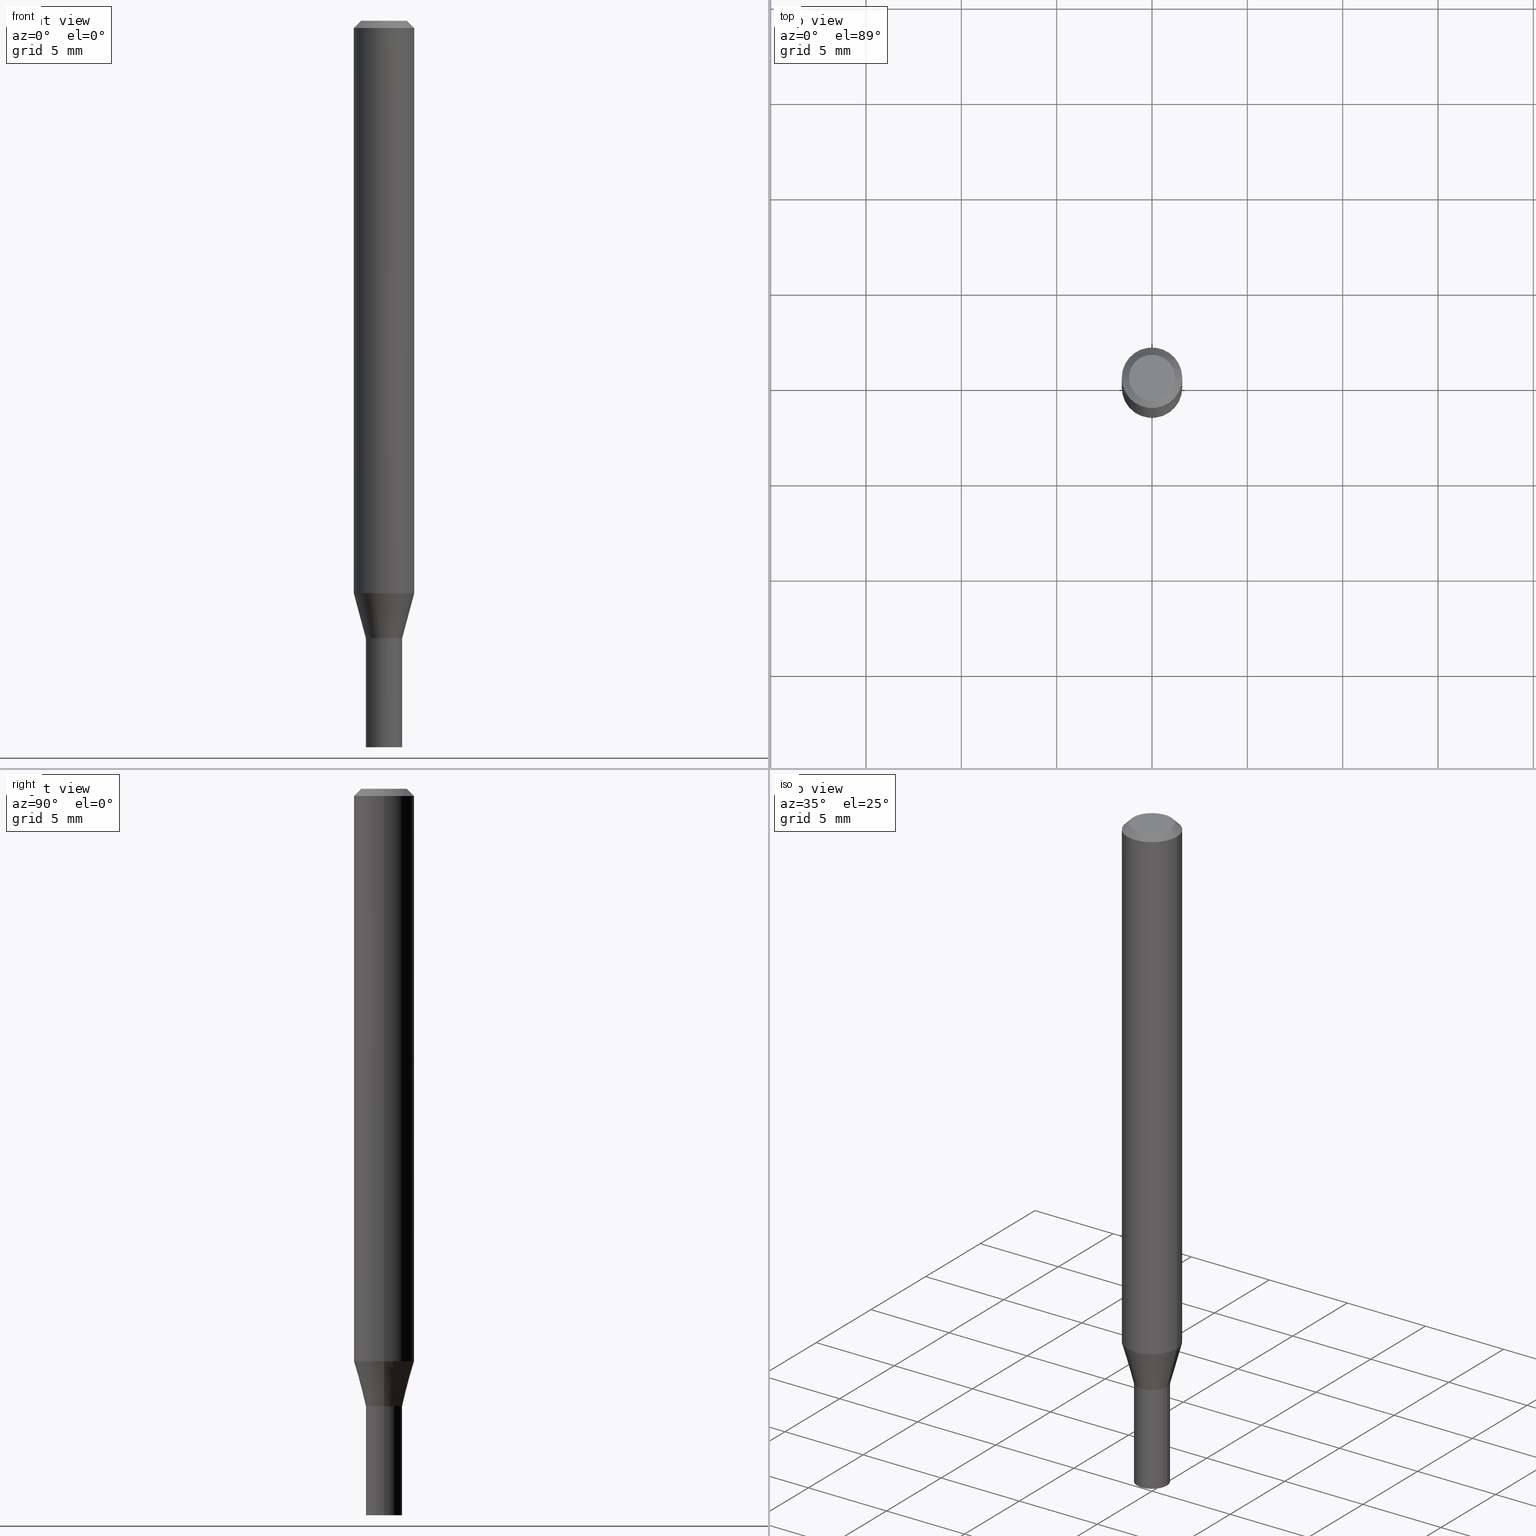
[diagram: canonical four-view strip — front | top / right | iso, engineering-drawing reading convention]
A machine part, canonical four-view strip (front | top / right | iso — engineering-drawing reading convention). The complete STEP part file that produces these views, byte-faithful:
ISO-10303-21;
HEADER;
FILE_DESCRIPTION (( 'STEP AP203' ),
    '1' );
FILE_NAME ('04007.STEP',
    '2024-03-14T16:54:51',
    ( '' ),
    ( '' ),
    'SwSTEP 2.0',
    'SolidWorks 2023',
    '' );
FILE_SCHEMA (( 'CONFIG_CONTROL_DESIGN' ));
ENDSEC;

DATA;
#1 = PERSON_AND_ORGANIZATION ( #277, #305 ) ;
#2 = EDGE_CURVE ( 'NONE', #231, #378, #82, .T. ) ;
#3 = APPROVAL_PERSON_ORGANIZATION ( #30, #48, #70 ) ;
#4 = CIRCLE ( 'NONE', #36, 0.04749999999999999362 ) ;
#5 = CARTESIAN_POINT ( 'NONE',  ( 0.03699999999999999817, -4.710008326099402011E-15, -1.274999999999999911 ) ) ;
#6 = ADVANCED_FACE ( 'NONE', ( #46 ), #216, .F. ) ;
#7 = CARTESIAN_POINT ( 'NONE',  ( 3.668203209277704895E-29, -5.237222008264718177E-15, -1.500000000000000222 ) ) ;
#8 = DIMENSIONAL_EXPONENTS ( 1.000000000000000000, 0.000000000000000000, 0.000000000000000000, 0.000000000000000000, 0.000000000000000000, 0.000000000000000000, 0.000000000000000000 ) ;
#9 = CARTESIAN_POINT ( 'NONE',  ( 0.000000000000000000, 0.000000000000000000, 0.000000000000000000 ) ) ;
#10 = DIRECTION ( 'NONE',  ( -2.445468806185136597E-29, 3.491481338843145583E-15, 1.000000000000000000 ) ) ;
#11 = ORIENTED_EDGE ( 'NONE', *, *, #240, .T. ) ;
#12 = FACE_OUTER_BOUND ( 'NONE', #339, .T. ) ;
#13 = APPROVAL_STATUS ( 'not_yet_approved' ) ;
#14 = DIRECTION ( 'NONE',  ( -2.445468806185136597E-29, 3.491481338843145583E-15, 1.000000000000000000 ) ) ;
#15 = ORIENTED_EDGE ( 'NONE', *, *, #203, .F. ) ;
#16 = CONICAL_SURFACE ( 'NONE', #111, 0.03749999999999965167, 0.2617993877991502960 ) ;
#17 = ORIENTED_EDGE ( 'NONE', *, *, #350, .T. ) ;
#18 = CC_DESIGN_APPROVAL ( #266, ( #183 ) ) ;
#19 = CARTESIAN_POINT ( 'NONE',  ( 0.000000000000000000, 0.000000000000000000, 0.000000000000000000 ) ) ;
#20 = DIRECTION ( 'NONE',  ( -2.445468806185136597E-29, 3.491481338843145583E-15, 1.000000000000000000 ) ) ;
#21 = FACE_OUTER_BOUND ( 'NONE', #328, .T. ) ;
#22 = ORIENTED_EDGE ( 'NONE', *, *, #253, .F. ) ;
#23 = VERTEX_POINT ( 'NONE', #336 ) ;
#24 = DIRECTION ( 'NONE',  ( 1.000000000000000000, -6.982962677686268288E-15, 0.000000000000000000 ) ) ;
#25 = ORIENTED_EDGE ( 'NONE', *, *, #213, .T. ) ;
#26 = EDGE_CURVE ( 'NONE', #128, #378, #86, .T. ) ;
#27 = LINE ( 'NONE', #166, #427 ) ;
#28 = DIRECTION ( 'NONE',  ( 1.000000000000000000, -6.982962677686266711E-15, 4.876176775795935793E-29 ) ) ;
#29 = ORIENTED_EDGE ( 'NONE', *, *, #262, .T. ) ;
#30 = PERSON_AND_ORGANIZATION ( #277, #305 ) ;
#31 = AXIS2_PLACEMENT_3D ( 'NONE', #125, #274, #414 ) ;
#32 = CARTESIAN_POINT ( 'NONE',  ( 0.03749999999999999861, -2.618611004132350016E-16, 1.828566290923475922E-30 ) ) ;
#33 = DIRECTION ( 'NONE',  ( -2.445468806185136597E-29, 3.491481338843145583E-15, 1.000000000000000000 ) ) ;
#34 = VERTEX_POINT ( 'NONE', #437 ) ;
#35 = APPROVAL_DATE_TIME ( #323, #48 ) ;
#36 = AXIS2_PLACEMENT_3D ( 'NONE', #74, #37, #397 ) ;
#37 = DIRECTION ( 'NONE',  ( -2.445468806185136597E-29, 3.491481338843145583E-15, 1.000000000000000000 ) ) ;
#38 = ADVANCED_FACE ( 'NONE', ( #256 ), #364, .T. ) ;
#39 =( NAMED_UNIT ( * ) PLANE_ANGLE_UNIT ( ) SI_UNIT ( $, .RADIAN. ) );
#40 = VECTOR ( 'NONE', #233, 39.37007874015748143 ) ;
#41 = DIRECTION ( 'NONE',  ( 0.7071067811865656694, -2.468850131082446387E-15, 0.7071067811865294761 ) ) ;
#42 = DIRECTION ( 'NONE',  ( 0.000000000000000000, 0.000000000000000000, 1.000000000000000000 ) ) ;
#43 = CARTESIAN_POINT ( 'NONE',  ( 8.901864651713830245E-45, -1.270950348405846147E-30, -3.640146473837256732E-16 ) ) ;
#44 = SECURITY_CLASSIFICATION ( '', '', #466 ) ;
#45 = VECTOR ( 'NONE', #310, 39.37007874015748143 ) ;
#46 = FACE_OUTER_BOUND ( 'NONE', #297, .T. ) ;
#47 = EDGE_CURVE ( 'NONE', #201, #23, #298, .T. ) ;
#48 = APPROVAL ( #13, 'UNSPECIFIED' ) ;
#49 = CARTESIAN_POINT ( 'NONE',  ( -0.03749999999999999861, 2.664535259100375598E-16, -1.844600658845589458E-30 ) ) ;
#50 = COORDINATED_UNIVERSAL_TIME_OFFSET ( 5, 0, .BEHIND. ) ;
#51 = CARTESIAN_POINT ( 'NONE',  ( -0.06250000000000000000, 3.840629472727444916E-16, -0.01499999999999999944 ) ) ;
#52 = ORIENTED_EDGE ( 'NONE', *, *, #78, .F. ) ;
#53 = PERSON_AND_ORGANIZATION_ROLE ( 'classification_officer' ) ;
#54 = DIRECTION ( 'NONE',  ( 1.000000000000000000, -6.982962677686254089E-15, 0.000000000000000000 ) ) ;
#55 = EDGE_LOOP ( 'NONE', ( #60, #97 ) ) ;
#56 = AXIS2_PLACEMENT_3D ( 'NONE', #132, #409, #54 ) ;
#57 = ORIENTED_EDGE ( 'NONE', *, *, #221, .T. ) ;
#58 = DIRECTION ( 'NONE',  ( 0.2588190451025216277, 1.565188264969619995E-15, 0.9659258262890679791 ) ) ;
#59 = CARTESIAN_POINT ( 'NONE',  ( -0.06250000000000000000, 4.440892098500626162E-16, -3.074334431409316114E-30 ) ) ;
#60 = ORIENTED_EDGE ( 'NONE', *, *, #152, .T. ) ;
#61 = CARTESIAN_POINT ( 'NONE',  ( 2.889807382060853894E-29, -4.125879063268977343E-15, -1.181698729810777282 ) ) ;
#62 = ORIENTED_EDGE ( 'NONE', *, *, #83, .F. ) ;
#63 = CARTESIAN_POINT ( 'NONE',  ( 3.117972727886048488E-29, -4.451638707025010805E-15, -1.274999999999999911 ) ) ;
#64 = VERTEX_POINT ( 'NONE', #81 ) ;
#65 = FACE_OUTER_BOUND ( 'NONE', #377, .T. ) ;
#66 = CARTESIAN_POINT ( 'NONE',  ( -0.06250000000000000000, -1.645036431825749595E-15, -0.01499999999999999944 ) ) ;
#67 = AXIS2_PLACEMENT_3D ( 'NONE', #187, #404, #338 ) ;
#68 = VERTEX_POINT ( 'NONE', #116 ) ;
#69 = CIRCLE ( 'NONE', #417, 0.03749999999999999861 ) ;
#70 = APPROVAL_ROLE ( '' ) ;
#71 =( LENGTH_UNIT ( ) NAMED_UNIT ( * ) SI_UNIT ( $, .METRE. ) );
#72 = AXIS2_PLACEMENT_3D ( 'NONE', #98, #121, #283 ) ;
#73 = EDGE_CURVE ( 'NONE', #162, #68, #356, .T. ) ;
#74 = CARTESIAN_POINT ( 'NONE',  ( 8.901864651713830245E-45, -1.270950348405846147E-30, -3.640146473837256732E-16 ) ) ;
#75 = VECTOR ( 'NONE', #239, 39.37007874015748143 ) ;
#76 = PERSON_AND_ORGANIZATION_ROLE ( 'design_owner' ) ;
#77 = CARTESIAN_POINT ( 'NONE',  ( -0.03749999999999965167, -4.185185181114976549E-15, -1.275000000000000133 ) ) ;
#78 = EDGE_CURVE ( 'NONE', #159, #120, #235, .T. ) ;
#79 = EDGE_CURVE ( 'NONE', #201, #64, #334, .T. ) ;
#80 = APPROVAL_STATUS ( 'not_yet_approved' ) ;
#81 = CARTESIAN_POINT ( 'NONE',  ( -0.03749999999999964473, -4.183439440445555045E-15, -1.274500000000000188 ) ) ;
#82 = LINE ( 'NONE', #403, #107 ) ;
#83 = EDGE_CURVE ( 'NONE', #355, #313, #258, .T. ) ;
#84 = AXIS2_PLACEMENT_3D ( 'NONE', #9, #401, #153 ) ;
#85 = CC_DESIGN_DATE_AND_TIME_ASSIGNMENT ( #103, #393, ( #44 ) ) ;
#86 = LINE ( 'NONE', #5, #264 ) ;
#87 = PERSON_AND_ORGANIZATION ( #277, #305 ) ;
#88 = DIRECTION ( 'NONE',  ( 1.000000000000000000, -6.982962677686268288E-15, 0.000000000000000000 ) ) ;
#89 = ORIENTED_EDGE ( 'NONE', *, *, #47, .T. ) ;
#90 = FACE_OUTER_BOUND ( 'NONE', #197, .T. ) ;
#91 = DIRECTION ( 'NONE',  ( -1.000000000000000000, 6.982962677686265922E-15, -4.876176775795935793E-29 ) ) ;
#92 = ORIENTED_EDGE ( 'NONE', *, *, #221, .F. ) ;
#93 = DIRECTION ( 'NONE',  ( -0.7071067811865561215, 2.468850131082346596E-15, -0.7071067811865389130 ) ) ;
#95 = ADVANCED_FACE ( 'NONE', ( #387 ), #180, .T. ) ;
#94 = VERTEX_POINT ( 'NONE', #112 ) ;
#96 = CARTESIAN_POINT ( 'NONE',  ( 0.04749999999999999362, -4.035134999187585033E-16, -3.640146473837231094E-16 ) ) ;
#97 = ORIENTED_EDGE ( 'NONE', *, *, #429, .T. ) ;
#98 = CARTESIAN_POINT ( 'NONE',  ( 3.117972727886048488E-29, -4.451638707025010805E-15, -1.274999999999999911 ) ) ;
#99 = DIRECTION ( 'NONE',  ( 1.000000000000000000, -6.982962677686255667E-15, 0.000000000000000000 ) ) ;
#100 = ORIENTED_EDGE ( 'NONE', *, *, #326, .F. ) ;
#101 = LINE ( 'NONE', #270, #45 ) ;
#102 = AXIS2_PLACEMENT_3D ( 'NONE', #458, #155, #346 ) ;
#103 = DATE_AND_TIME ( #138, #247 ) ;
#104 = LOCAL_TIME ( 12, 54, 51.00000000000000000, #106 ) ;
#105 = PERSON_AND_ORGANIZATION ( #277, #305 ) ;
#106 = COORDINATED_UNIVERSAL_TIME_OFFSET ( 5, 0, .BEHIND. ) ;
#107 = VECTOR ( 'NONE', #367, 39.37007874015748143 ) ;
#108 = VECTOR ( 'NONE', #315, 39.37007874015748143 ) ;
#109 = COORDINATED_UNIVERSAL_TIME_OFFSET ( 5, 0, .BEHIND. ) ;
#110 = CC_DESIGN_PERSON_AND_ORGANIZATION_ASSIGNMENT ( #359, #375, ( #183 ) ) ;
#111 = AXIS2_PLACEMENT_3D ( 'NONE', #178, #173, #463 ) ;
#112 = CARTESIAN_POINT ( 'NONE',  ( -0.03749999999999999861, -4.577976831734827473E-15, -1.275000000000000133 ) ) ;
#113 = APPROVAL ( #80, 'UNSPECIFIED' ) ;
#114 = CC_DESIGN_PERSON_AND_ORGANIZATION_ASSIGNMENT ( #105, #53, ( #44 ) ) ;
#115 = DIRECTION ( 'NONE',  ( 1.000000000000000000, 0.000000000000000000, 0.000000000000000000 ) ) ;
#116 = CARTESIAN_POINT ( 'NONE',  ( 0.06250000000000000000, -4.888073874380388472E-16, -0.01499999999999999944 ) ) ;
#117 = CIRCLE ( 'NONE', #72, 0.03699999999999999817 ) ;
#118 = DIRECTION ( 'NONE',  ( -2.445468806185136877E-29, 3.491481338843145188E-15, 1.000000000000000000 ) ) ;
#119 = AXIS2_PLACEMENT_3D ( 'NONE', #164, #376, #28 ) ;
#120 = VERTEX_POINT ( 'NONE', #96 ) ;
#121 = DIRECTION ( 'NONE',  ( -2.445468806185136597E-29, 3.491481338843145583E-15, 1.000000000000000000 ) ) ;
#122 = CARTESIAN_POINT ( 'NONE',  ( -0.03749999999999965167, -3.933487517266945244E-15, -1.275000000000000133 ) ) ;
#123 = EDGE_LOOP ( 'NONE', ( #343, #134, #371, #151 ) ) ;
#124 = EDGE_LOOP ( 'NONE', ( #11, #272, #198, #154 ) ) ;
#125 = CARTESIAN_POINT ( 'NONE',  ( 3.117972727886049049E-29, -4.451638707025011594E-15, -1.275000000000000133 ) ) ;
#126 = EDGE_CURVE ( 'NONE', #313, #355, #69, .T. ) ;
#127 = DIRECTION ( 'NONE',  ( -2.445468806185136597E-29, 3.491481338843145583E-15, 1.000000000000000000 ) ) ;
#128 = VERTEX_POINT ( 'NONE', #342 ) ;
#129 = ADVANCED_FACE ( 'NONE', ( #171 ), #449, .F. ) ;
#130 = ORIENTED_EDGE ( 'NONE', *, *, #326, .T. ) ;
#131 = LINE ( 'NONE', #374, #224 ) ;
#132 = CARTESIAN_POINT ( 'NONE',  ( 3.117972727886048488E-29, -4.451638707025010805E-15, -1.274999999999999911 ) ) ;
#133 = CIRCLE ( 'NONE', #457, 0.03749999999999964473 ) ;
#134 = ORIENTED_EDGE ( 'NONE', *, *, #79, .T. ) ;
#135 = LINE ( 'NONE', #421, #290 ) ;
#136 = DIRECTION ( 'NONE',  ( -2.445468806185136597E-29, 3.491481338843145583E-15, 1.000000000000000000 ) ) ;
#137 = ADVANCED_FACE ( 'NONE', ( #21 ), #210, .T. ) ;
#138 = CALENDAR_DATE ( 2024, 14, 3 ) ;
#139 = CARTESIAN_POINT ( 'NONE',  ( 3.668203209277705088E-31, -5.237222008264718399E-17, -0.01499999999999999944 ) ) ;
#140 = ADVANCED_FACE ( 'NONE', ( #415 ), #454, .F. ) ;
#141 = AXIS2_PLACEMENT_3D ( 'NONE', #263, #257, #184 ) ;
#142 = AXIS2_PLACEMENT_3D ( 'NONE', #139, #199, #163 ) ;
#143 = EDGE_CURVE ( 'NONE', #159, #162, #411, .T. ) ;
#144 = CC_DESIGN_SECURITY_CLASSIFICATION ( #44, ( #183 ) ) ;
#145 = FACE_OUTER_BOUND ( 'NONE', #456, .T. ) ;
#146 = AXIS2_PLACEMENT_3D ( 'NONE', #43, #10, #186 ) ;
#147 = VECTOR ( 'NONE', #93, 39.37007874015748143 ) ;
#148 = AXIS2_PLACEMENT_3D ( 'NONE', #63, #351, #157 ) ;
#149 = DATE_AND_TIME ( #333, #158 ) ;
#150 = DIRECTION ( 'NONE',  ( -2.445468806185136597E-29, 3.491481338843145583E-15, 1.000000000000000000 ) ) ;
#151 = ORIENTED_EDGE ( 'NONE', *, *, #2, .F. ) ;
#152 = EDGE_CURVE ( 'NONE', #34, #94, #259, .T. ) ;
#153 = DIRECTION ( 'NONE',  ( 1.000000000000000000, -6.982962677686266711E-15, 4.876176775795935793E-29 ) ) ;
#154 = ORIENTED_EDGE ( 'NONE', *, *, #26, .F. ) ;
#155 = DIRECTION ( 'NONE',  ( 2.445468806185136597E-29, -3.491481338843145583E-15, -1.000000000000000000 ) ) ;
#156 = AXIS2_PLACEMENT_3D ( 'NONE', #320, #20, #460 ) ;
#157 = DIRECTION ( 'NONE',  ( 1.000000000000000000, -6.982962677686254089E-15, 0.000000000000000000 ) ) ;
#158 = LOCAL_TIME ( 12, 54, 51.00000000000000000, #365 ) ;
#159 = VERTEX_POINT ( 'NONE', #241 ) ;
#160 = ORIENTED_EDGE ( 'NONE', *, *, #337, .T. ) ;
#161 = PLANE ( 'NONE',  #441 ) ;
#162 = VERTEX_POINT ( 'NONE', #66 ) ;
#163 = DIRECTION ( 'NONE',  ( 1.000000000000000000, -6.982962677686266711E-15, 0.000000000000000000 ) ) ;
#164 = CARTESIAN_POINT ( 'NONE',  ( 0.000000000000000000, 0.000000000000000000, 0.000000000000000000 ) ) ;
#165 = ORIENTED_EDGE ( 'NONE', *, *, #389, .F. ) ;
#166 = CARTESIAN_POINT ( 'NONE',  ( -0.03699999999999999817, -4.188737894793773503E-15, -1.274999999999999911 ) ) ;
#167 = CARTESIAN_POINT ( 'NONE',  ( 3.117972727886049049E-29, -4.451638707025011594E-15, -1.275000000000000133 ) ) ;
#168 = ADVANCED_FACE ( 'NONE', ( #319 ), #384, .T. ) ;
#169 = ORIENTED_EDGE ( 'NONE', *, *, #386, .F. ) ;
#170 = CARTESIAN_POINT ( 'NONE',  ( 2.889807382060853894E-29, -4.125879063268977343E-15, -1.181698729810777282 ) ) ;
#171 = FACE_OUTER_BOUND ( 'NONE', #123, .T. ) ;
#172 = ORIENTED_EDGE ( 'NONE', *, *, #26, .T. ) ;
#173 = DIRECTION ( 'NONE',  ( -2.445468806185136597E-29, 3.491481338843145583E-15, 1.000000000000000000 ) ) ;
#174 = PERSON_AND_ORGANIZATION_ROLE ( 'design_supplier' ) ;
#175 = DIRECTION ( 'NONE',  ( -2.438088387897960049E-29, 3.491481338843145188E-15, 1.000000000000000000 ) ) ;
#176 = AXIS2_PLACEMENT_3D ( 'NONE', #254, #252, #181 ) ;
#177 = ADVANCED_FACE ( 'NONE', ( #354 ), #161, .F. ) ;
#178 = CARTESIAN_POINT ( 'NONE',  ( 3.117972727886049049E-29, -4.451638707025011594E-15, -1.275000000000000133 ) ) ;
#179 = ADVANCED_FACE ( 'NONE', ( #444 ), #381, .T. ) ;
#180 = CONICAL_SURFACE ( 'NONE', #407, 0.03749999999999965167, 0.2617993877991502960 ) ;
#181 = DIRECTION ( 'NONE',  ( 1.000000000000000000, -6.982962677686268288E-15, 0.000000000000000000 ) ) ;
#182 = CIRCLE ( 'NONE', #142, 0.06250000000000000000 ) ;
#183 = PRODUCT_DEFINITION_FORMATION_WITH_SPECIFIED_SOURCE ( 'ANY', '', #287, .NOT_KNOWN. ) ;
#184 = DIRECTION ( 'NONE',  ( 1.000000000000000000, -6.982962677686265922E-15, 4.876176775795935793E-29 ) ) ;
#185 = ORIENTED_EDGE ( 'NONE', *, *, #261, .F. ) ;
#186 = DIRECTION ( 'NONE',  ( 1.000000000000000000, -6.982962677686267499E-15, 4.852736867747366768E-29 ) ) ;
#187 = CARTESIAN_POINT ( 'NONE',  ( 3.668203209277705088E-31, -5.237222008264718399E-17, -0.01499999999999999944 ) ) ;
#188 = ORIENTED_EDGE ( 'NONE', *, *, #253, .T. ) ;
#189 = DIRECTION ( 'NONE',  ( 1.000000000000000000, -6.982962677686267499E-15, 4.876176775795936353E-29 ) ) ;
#190 = ORIENTED_EDGE ( 'NONE', *, *, #73, .F. ) ;
#191 = ORIENTED_EDGE ( 'NONE', *, *, #389, .T. ) ;
#192 = CYLINDRICAL_SURFACE ( 'NONE', #402, 0.03749999999999965167 ) ;
#193 = LINE ( 'NONE', #32, #75 ) ;
#194 = VECTOR ( 'NONE', #118, 39.37007874015748143 ) ;
#195 = AXIS2_PLACEMENT_3D ( 'NONE', #61, #452, #202 ) ;
#196 = DIRECTION ( 'NONE',  ( 1.000000000000000000, -6.982962677686266711E-15, 4.876176775795935793E-29 ) ) ;
#197 = EDGE_LOOP ( 'NONE', ( #316, #382, #348, #25 ) ) ;
#198 = ORIENTED_EDGE ( 'NONE', *, *, #213, .F. ) ;
#199 = DIRECTION ( 'NONE',  ( -2.445468806185136597E-29, 3.491481338843145583E-15, 1.000000000000000000 ) ) ;
#200 = CARTESIAN_POINT ( 'NONE',  ( 0.000000000000000000, 0.000000000000000000, 0.000000000000000000 ) ) ;
#201 = VERTEX_POINT ( 'NONE', #122 ) ;
#202 = DIRECTION ( 'NONE',  ( 1.000000000000000000, -6.982962677686270655E-15, 0.000000000000000000 ) ) ;
#203 = EDGE_CURVE ( 'NONE', #64, #378, #335, .T. ) ;
#204 = CARTESIAN_POINT ( 'NONE',  ( -0.03699999999999999817, -4.186088667619663880E-15, -1.274999999999999911 ) ) ;
#205 = VERTEX_POINT ( 'NONE', #204 ) ;
#206 = CARTESIAN_POINT ( 'NONE',  ( 3.117972727886048488E-29, -4.451638707025010805E-15, -1.274999999999999911 ) ) ;
#207 = DIRECTION ( 'NONE',  ( -2.445468806185136597E-29, 3.491481338843145583E-15, 1.000000000000000000 ) ) ;
#208 = AXIS2_PLACEMENT_3D ( 'NONE', #206, #175, #324 ) ;
#209 = EDGE_CURVE ( 'NONE', #201, #231, #278, .T. ) ;
#210 = CONICAL_SURFACE ( 'NONE', #148, 0.03699999999999999817, 0.7853981633974739252 ) ;
#211 = FACE_OUTER_BOUND ( 'NONE', #307, .T. ) ;
#212 = DESIGN_CONTEXT ( 'detailed design', #399, 'design' ) ;
#213 = EDGE_CURVE ( 'NONE', #378, #64, #133, .T. ) ;
#214 = CC_DESIGN_PERSON_AND_ORGANIZATION_ASSIGNMENT ( #87, #174, ( #183 ) ) ;
#215 = DIRECTION ( 'NONE',  ( -1.000000000000000000, 6.982962677686266711E-15, 0.000000000000000000 ) ) ;
#216 = PLANE ( 'NONE',  #141 ) ;
#217 = CALENDAR_DATE ( 2024, 14, 3 ) ;
#218 = APPROVAL_PERSON_ORGANIZATION ( #1, #266, #291 ) ;
#219 = APPROVAL_ROLE ( '' ) ;
#220 = ORIENTED_EDGE ( 'NONE', *, *, #429, .F. ) ;
#221 = EDGE_CURVE ( 'NONE', #23, #162, #461, .T. ) ;
#222 = PERSON_AND_ORGANIZATION ( #277, #305 ) ;
#223 = ORIENTED_EDGE ( 'NONE', *, *, #143, .F. ) ;
#224 = VECTOR ( 'NONE', #58, 39.37007874015748143 ) ;
#225 = FACE_OUTER_BOUND ( 'NONE', #124, .T. ) ;
#226 = DIRECTION ( 'NONE',  ( 2.438088387897960049E-29, -3.491481338843145188E-15, -1.000000000000000000 ) ) ;
#227 = ORIENTED_EDGE ( 'NONE', *, *, #126, .F. ) ;
#228 = PRODUCT_RELATED_PRODUCT_CATEGORY ( 'detail', '', ( #287 ) ) ;
#229 = EDGE_LOOP ( 'NONE', ( #373, #29, #420, #22 ) ) ;
#230 = CARTESIAN_POINT ( 'NONE',  ( 2.618611004132661617E-16, 0.03749999999999554384, -1.275000000000000133 ) ) ;
#231 = VERTEX_POINT ( 'NONE', #267 ) ;
#232 = CARTESIAN_POINT ( 'NONE',  ( 3.117972727886048488E-29, -4.451638707025010805E-15, -1.274999999999999911 ) ) ;
#233 = DIRECTION ( 'NONE',  ( -2.445468806185136877E-29, 3.491481338843145188E-15, 1.000000000000000000 ) ) ;
#234 = CC_DESIGN_APPROVAL ( #48, ( #44 ) ) ;
#235 = CIRCLE ( 'NONE', #146, 0.04749999999999999362 ) ;
#236 = AXIS2_PLACEMENT_3D ( 'NONE', #432, #332, #215 ) ;
#237 = CARTESIAN_POINT ( 'NONE',  ( 3.116749993482957368E-29, -4.449892966355590090E-15, -1.274500000000000188 ) ) ;
#238 = EDGE_LOOP ( 'NONE', ( #312, #57, #268, #165 ) ) ;
#239 = DIRECTION ( 'NONE',  ( -2.445468806185136877E-29, 3.491481338843145188E-15, 1.000000000000000000 ) ) ;
#240 = EDGE_CURVE ( 'NONE', #128, #205, #391, .T. ) ;
#241 = CARTESIAN_POINT ( 'NONE',  ( -0.04749999999999999362, 3.578768372314204096E-16, -3.640146473837280891E-16 ) ) ;
#242 = ORIENTED_EDGE ( 'NONE', *, *, #262, .F. ) ;
#243 = EDGE_CURVE ( 'NONE', #120, #68, #101, .T. ) ;
#244 = DIRECTION ( 'NONE',  ( -2.445468806185136877E-29, 3.491481338843145188E-15, 1.000000000000000000 ) ) ;
#245 = DIRECTION ( 'NONE',  ( -1.000000000000000000, 6.982962677686265922E-15, -4.876176775795935793E-29 ) ) ;
#246 = DATE_AND_TIME ( #217, #442 ) ;
#247 = LOCAL_TIME ( 12, 54, 51.00000000000000000, #426 ) ;
#248 = CIRCLE ( 'NONE', #195, 0.06250000000000000000 ) ;
#249 = AXIS2_PLACEMENT_3D ( 'NONE', #439, #42, #115 ) ;
#250 = APPROVAL_STATUS ( 'not_yet_approved' ) ;
#251 = AXIS2_PLACEMENT_3D ( 'NONE', #200, #14, #189 ) ;
#252 = DIRECTION ( 'NONE',  ( -2.445468806185136597E-29, 3.491481338843145583E-15, 1.000000000000000000 ) ) ;
#253 = EDGE_CURVE ( 'NONE', #313, #34, #193, .T. ) ;
#254 = CARTESIAN_POINT ( 'NONE',  ( 3.117972727886049049E-29, -4.451638707025011594E-15, -1.275000000000000133 ) ) ;
#255 = APPLICATION_PROTOCOL_DEFINITION ( 'international standard', 'config_control_design', 1994, #436 ) ;
#256 = FACE_OUTER_BOUND ( 'NONE', #238, .T. ) ;
#257 = DIRECTION ( 'NONE',  ( -2.438088387897960049E-29, 3.491481338843145188E-15, 1.000000000000000000 ) ) ;
#258 = CIRCLE ( 'NONE', #390, 0.03749999999999999861 ) ;
#259 = CIRCLE ( 'NONE', #392, 0.03749999999999999861 ) ;
#260 = MECHANICAL_CONTEXT ( 'NONE', #436, 'mechanical' ) ;
#261 = EDGE_CURVE ( 'NONE', #231, #388, #131, .T. ) ;
#262 = EDGE_CURVE ( 'NONE', #355, #94, #341, .T. ) ;
#263 = CARTESIAN_POINT ( 'NONE',  ( 3.576687321579069994E-29, -5.368277968210015545E-15, -1.500000000000000222 ) ) ;
#264 = VECTOR ( 'NONE', #41, 39.37007874015748143 ) ;
#265 = AXIS2_PLACEMENT_3D ( 'NONE', #170, #304, #380 ) ;
#266 = APPROVAL ( #250, 'UNSPECIFIED' ) ;
#267 = CARTESIAN_POINT ( 'NONE',  ( 0.03749999999999965167, -4.713499807438243440E-15, -1.275000000000000133 ) ) ;
#268 = ORIENTED_EDGE ( 'NONE', *, *, #350, .F. ) ;
#269 = EDGE_LOOP ( 'NONE', ( #242, #424, #188, #220 ) ) ;
#270 = CARTESIAN_POINT ( 'NONE',  ( 0.06250000000000000000, -4.811533449433679005E-16, -0.01499999999999999944 ) ) ;
#271 = CARTESIAN_POINT ( 'NONE',  ( 3.668203209277704895E-29, -5.237222008264718177E-15, -1.500000000000000222 ) ) ;
#272 = ORIENTED_EDGE ( 'NONE', *, *, #386, .T. ) ;
#273 = ORIENTED_EDGE ( 'NONE', *, *, #465, .F. ) ;
#274 = DIRECTION ( 'NONE',  ( -2.445468806185136597E-29, 3.491481338843145583E-15, 1.000000000000000000 ) ) ;
#275 = CARTESIAN_POINT ( 'NONE',  ( 3.117972727886049049E-29, -4.451638707025011594E-15, -1.275000000000000133 ) ) ;
#276 = EDGE_LOOP ( 'NONE', ( #92, #349, #191, #190 ) ) ;
#277 = PERSON ( 'UNSPECIFIED', 'UNSPECIFIED', 'UNSPECIFIED', ('UNSPECIFIED'), ('UNSPECIFIED'), ('UNSPECIFIED') ) ;
#278 = CIRCLE ( 'NONE', #464, 0.03749999999999965167 ) ;
#279 = DIRECTION ( 'NONE',  ( -2.445468806185136597E-29, 3.491481338843145583E-15, 1.000000000000000000 ) ) ;
#280 = ORIENTED_EDGE ( 'NONE', *, *, #243, .T. ) ;
#281 = CARTESIAN_POINT ( 'NONE',  ( 3.117972727886049049E-29, -4.451638707025011594E-15, -1.275000000000000133 ) ) ;
#282 = ORIENTED_EDGE ( 'NONE', *, *, #368, .F. ) ;
#283 = DIRECTION ( 'NONE',  ( 1.000000000000000000, -6.982962677686254089E-15, 0.000000000000000000 ) ) ;
#284 = CLOSED_SHELL ( 'NONE', ( #129, #422, #289, #38, #95, #410, #299, #455, #177, #405, #137, #412 ) ) ;
#285 = CALENDAR_DATE ( 2024, 14, 3 ) ;
#286 = CC_DESIGN_APPROVAL ( #113, ( #288 ) ) ;
#287 = PRODUCT ( '04007', '04007', '', ( #260 ) ) ;
#288 = PRODUCT_DEFINITION ( 'UNKNOWN', '', #183, #212 ) ;
#289 = ADVANCED_FACE ( 'NONE', ( #12 ), #345, .T. ) ;
#290 = VECTOR ( 'NONE', #244, 39.37007874015748143 ) ;
#291 = APPROVAL_ROLE ( '' ) ;
#292 = SHAPE_DEFINITION_REPRESENTATION ( #430, #318 ) ;
#293 = EDGE_CURVE ( 'NONE', #23, #388, #303, .T. ) ;
#294 = CONICAL_SURFACE ( 'NONE', #408, 0.03699999999999999817, 0.7853981633974739252 ) ;
#295 = APPROVAL_DATE_TIME ( #149, #113 ) ;
#296 = DIRECTION ( 'NONE',  ( 1.000000000000000000, -6.982962677686268288E-15, 0.000000000000000000 ) ) ;
#297 = EDGE_LOOP ( 'NONE', ( #227, #62 ) ) ;
#298 = LINE ( 'NONE', #77, #433 ) ;
#299 = ADVANCED_FACE ( 'NONE', ( #443 ), #383, .T. ) ;
#300 = CARTESIAN_POINT ( 'NONE',  ( -0.03749999999999965167, 2.664535259100350947E-16, -1.844600658845572642E-30 ) ) ;
#301 = MANIFOLD_SOLID_BREP ( 'Body-Move/Copy2[2]', #284 ) ;
#302 = LOCAL_TIME ( 12, 54, 51.00000000000000000, #50 ) ;
#303 = CIRCLE ( 'NONE', #265, 0.06250000000000000000 ) ;
#304 = DIRECTION ( 'NONE',  ( -2.445468806185136597E-29, 3.491481338843145583E-15, 1.000000000000000000 ) ) ;
#305 = ORGANIZATION ( 'UNSPECIFIED', 'UNSPECIFIED', '' ) ;
#306 = DIRECTION ( 'NONE',  ( 2.438088387897960049E-29, -3.491481338843145188E-15, -1.000000000000000000 ) ) ;
#307 = EDGE_LOOP ( 'NONE', ( #352, #450, #406, #322 ) ) ;
#308 = EDGE_LOOP ( 'NONE', ( #160, #89, #282, #185 ) ) ;
#309 = DIRECTION ( 'NONE',  ( -2.445468806185136597E-29, 3.491481338843145583E-15, 1.000000000000000000 ) ) ;
#310 = DIRECTION ( 'NONE',  ( 0.7071067811865561215, -7.319954787623284444E-15, -0.7071067811865389130 ) ) ;
#311 = DIRECTION ( 'NONE',  ( 1.000000000000000000, -6.982962677686256455E-15, 0.000000000000000000 ) ) ;
#312 = ORIENTED_EDGE ( 'NONE', *, *, #368, .T. ) ;
#313 = VERTEX_POINT ( 'NONE', #448 ) ;
#314 = CARTESIAN_POINT ( 'NONE',  ( -0.03749999999999999861, -4.577976831734827473E-15, -1.500000000000000222 ) ) ;
#315 = DIRECTION ( 'NONE',  ( -2.445468806185136877E-29, 3.491481338843145188E-15, 1.000000000000000000 ) ) ;
#316 = ORIENTED_EDGE ( 'NONE', *, *, #79, .F. ) ;
#317 = DIRECTION ( 'NONE',  ( -0.7071067811865656694, 7.493145998870420424E-15, 0.7071067811865294761 ) ) ;
#318 = ADVANCED_BREP_SHAPE_REPRESENTATION ( '04007', ( #453, #301, #249 ), #329 ) ;
#319 = FACE_OUTER_BOUND ( 'NONE', #269, .T. ) ;
#320 = CARTESIAN_POINT ( 'NONE',  ( 0.000000000000000000, 0.000000000000000000, 0.000000000000000000 ) ) ;
#321 = DIRECTION ( 'NONE',  ( 1.000000000000000000, -6.982962677686256455E-15, 0.000000000000000000 ) ) ;
#322 = ORIENTED_EDGE ( 'NONE', *, *, #293, .F. ) ;
#323 = DATE_AND_TIME ( #394, #302 ) ;
#324 = DIRECTION ( 'NONE',  ( 1.000000000000000000, -6.982962677686265922E-15, 4.876176775795935793E-29 ) ) ;
#325 = AXIS2_PLACEMENT_3D ( 'NONE', #230, #226, #91 ) ;
#326 = EDGE_CURVE ( 'NONE', #205, #128, #117, .T. ) ;
#327 = CLOSED_SHELL ( 'NONE', ( #179, #6, #168, #140 ) ) ;
#328 = EDGE_LOOP ( 'NONE', ( #169, #130, #172, #15 ) ) ;
#329 =( GEOMETRIC_REPRESENTATION_CONTEXT ( 3 ) GLOBAL_UNCERTAINTY_ASSIGNED_CONTEXT ( ( #372 ) ) GLOBAL_UNIT_ASSIGNED_CONTEXT ( ( #434, #39, #398 ) ) REPRESENTATION_CONTEXT ( 'NONE', 'WORKASPACE' ) );
#330 = PERSON_AND_ORGANIZATION ( #277, #305 ) ;
#331 = CC_DESIGN_PERSON_AND_ORGANIZATION_ASSIGNMENT ( #435, #431, ( #288 ) ) ;
#332 = DIRECTION ( 'NONE',  ( 2.445468806185136597E-29, -3.491481338843145583E-15, -1.000000000000000000 ) ) ;
#333 = CALENDAR_DATE ( 2024, 14, 3 ) ;
#334 = LINE ( 'NONE', #300, #194 ) ;
#335 = CIRCLE ( 'NONE', #396, 0.03749999999999964473 ) ;
#336 = CARTESIAN_POINT ( 'NONE',  ( -0.06250000000000000000, -3.681789853418914727E-15, -1.181698729810777282 ) ) ;
#337 = EDGE_CURVE ( 'NONE', #231, #201, #362, .T. ) ;
#338 = DIRECTION ( 'NONE',  ( 1.000000000000000000, -6.982962677686266711E-15, 0.000000000000000000 ) ) ;
#339 = EDGE_LOOP ( 'NONE', ( #273, #280, #17, #223 ) ) ;
#340 = DIRECTION ( 'NONE',  ( 1.000000000000000000, -6.982962677686254089E-15, 0.000000000000000000 ) ) ;
#341 = LINE ( 'NONE', #49, #40 ) ;
#342 = CARTESIAN_POINT ( 'NONE',  ( 0.03699999999999999817, -4.710008326099402011E-15, -1.274999999999999911 ) ) ;
#343 = ORIENTED_EDGE ( 'NONE', *, *, #209, .F. ) ;
#344 = ORIENTED_EDGE ( 'NONE', *, *, #143, .T. ) ;
#345 = CONICAL_SURFACE ( 'NONE', #102, 0.06250000000000000000, 0.7853981633974604915 ) ;
#346 = DIRECTION ( 'NONE',  ( -1.000000000000000000, 6.982962677686266711E-15, 0.000000000000000000 ) ) ;
#347 = DIRECTION ( 'NONE',  ( -2.445468806185136597E-29, 3.491481338843145583E-15, 1.000000000000000000 ) ) ;
#348 = ORIENTED_EDGE ( 'NONE', *, *, #2, .T. ) ;
#349 = ORIENTED_EDGE ( 'NONE', *, *, #293, .T. ) ;
#350 = EDGE_CURVE ( 'NONE', #68, #162, #182, .T. ) ;
#351 = DIRECTION ( 'NONE',  ( -2.445468806185136597E-29, 3.491481338843145583E-15, 1.000000000000000000 ) ) ;
#352 = ORIENTED_EDGE ( 'NONE', *, *, #47, .F. ) ;
#353 = CARTESIAN_POINT ( 'NONE',  ( 0.03749999999999964473, -4.711754066768821937E-15, -1.274500000000000188 ) ) ;
#354 = FACE_OUTER_BOUND ( 'NONE', #413, .T. ) ;
#355 = VERTEX_POINT ( 'NONE', #314 ) ;
#356 = CIRCLE ( 'NONE', #67, 0.06250000000000000000 ) ;
#357 = CIRCLE ( 'NONE', #176, 0.03749999999999999861 ) ;
#358 = DIRECTION ( 'NONE',  ( -2.445468806185136597E-29, 3.491481338843145583E-15, 1.000000000000000000 ) ) ;
#359 = PERSON_AND_ORGANIZATION ( #277, #305 ) ;
#360 = DATE_AND_TIME ( #285, #104 ) ;
#361 = LENGTH_MEASURE_WITH_UNIT ( LENGTH_MEASURE( 0.02539999999999999897 ), #71 );
#362 = CIRCLE ( 'NONE', #31, 0.03749999999999965167 ) ;
#363 = CC_DESIGN_DATE_AND_TIME_ASSIGNMENT ( #360, #395, ( #288 ) ) ;
#364 = CYLINDRICAL_SURFACE ( 'NONE', #84, 0.06250000000000000000 ) ;
#365 = COORDINATED_UNIVERSAL_TIME_OFFSET ( 5, 0, .BEHIND. ) ;
#366 = CC_DESIGN_PERSON_AND_ORGANIZATION_ASSIGNMENT ( #222, #76, ( #287 ) ) ;
#367 = DIRECTION ( 'NONE',  ( -2.445468806185136877E-29, 3.491481338843145188E-15, 1.000000000000000000 ) ) ;
#368 = EDGE_CURVE ( 'NONE', #388, #23, #248, .T. ) ;
#369 = PLANE ( 'NONE',  #208 ) ;
#370 = CARTESIAN_POINT ( 'NONE',  ( 0.000000000000000000, 0.000000000000000000, 0.000000000000000000 ) ) ;
#371 = ORIENTED_EDGE ( 'NONE', *, *, #203, .T. ) ;
#372 = UNCERTAINTY_MEASURE_WITH_UNIT (LENGTH_MEASURE( 1.000000000000000082E-05 ), #434, 'distance_accuracy_value', 'NONE');
#373 = ORIENTED_EDGE ( 'NONE', *, *, #126, .T. ) ;
#374 = CARTESIAN_POINT ( 'NONE',  ( 0.03749999999999965167, -4.713499807438243440E-15, -1.275000000000000133 ) ) ;
#375 = PERSON_AND_ORGANIZATION_ROLE ( 'creator' ) ;
#376 = DIRECTION ( 'NONE',  ( -2.445468806185136597E-29, 3.491481338843145583E-15, 1.000000000000000000 ) ) ;
#377 = EDGE_LOOP ( 'NONE', ( #385, #100 ) ) ;
#378 = VERTEX_POINT ( 'NONE', #353 ) ;
#379 = DIRECTION ( 'NONE',  ( -2.445468806185136597E-29, 3.491481338843145583E-15, 1.000000000000000000 ) ) ;
#380 = DIRECTION ( 'NONE',  ( 1.000000000000000000, -6.982962677686270655E-15, 0.000000000000000000 ) ) ;
#381 = CYLINDRICAL_SURFACE ( 'NONE', #119, 0.03749999999999999861 ) ;
#382 = ORIENTED_EDGE ( 'NONE', *, *, #337, .F. ) ;
#383 = CYLINDRICAL_SURFACE ( 'NONE', #156, 0.06250000000000000000 ) ;
#384 = CYLINDRICAL_SURFACE ( 'NONE', #418, 0.03749999999999999861 ) ;
#385 = ORIENTED_EDGE ( 'NONE', *, *, #240, .F. ) ;
#386 = EDGE_CURVE ( 'NONE', #205, #64, #27, .T. ) ;
#387 = FACE_OUTER_BOUND ( 'NONE', #308, .T. ) ;
#388 = VERTEX_POINT ( 'NONE', #425 ) ;
#389 = EDGE_CURVE ( 'NONE', #388, #68, #135, .T. ) ;
#390 = AXIS2_PLACEMENT_3D ( 'NONE', #7, #150, #296 ) ;
#391 = CIRCLE ( 'NONE', #56, 0.03699999999999999817 ) ;
#392 = AXIS2_PLACEMENT_3D ( 'NONE', #281, #279, #88 ) ;
#393 = DATE_TIME_ROLE ( 'classification_date' ) ;
#394 = CALENDAR_DATE ( 2024, 14, 3 ) ;
#395 = DATE_TIME_ROLE ( 'creation_date' ) ;
#396 = AXIS2_PLACEMENT_3D ( 'NONE', #423, #127, #311 ) ;
#397 = DIRECTION ( 'NONE',  ( 1.000000000000000000, -6.982962677686267499E-15, 4.852736867747366768E-29 ) ) ;
#398 =( NAMED_UNIT ( * ) SI_UNIT ( $, .STERADIAN. ) SOLID_ANGLE_UNIT ( ) );
#399 = APPLICATION_CONTEXT ( 'configuration controlled 3d designs of mechanical parts and assemblies' ) ;
#400 = APPLICATION_PROTOCOL_DEFINITION ( 'international standard', 'config_control_design', 1994, #399 ) ;
#401 = DIRECTION ( 'NONE',  ( -2.445468806185136597E-29, 3.491481338843145583E-15, 1.000000000000000000 ) ) ;
#402 = AXIS2_PLACEMENT_3D ( 'NONE', #19, #309, #447 ) ;
#403 = CARTESIAN_POINT ( 'NONE',  ( 0.03749999999999965167, -2.618611004132325858E-16, 1.828566290923459107E-30 ) ) ;
#404 = DIRECTION ( 'NONE',  ( -2.445468806185136597E-29, 3.491481338843145583E-15, 1.000000000000000000 ) ) ;
#405 = ADVANCED_FACE ( 'NONE', ( #65 ), #369, .F. ) ;
#406 = ORIENTED_EDGE ( 'NONE', *, *, #261, .T. ) ;
#407 = AXIS2_PLACEMENT_3D ( 'NONE', #167, #347, #419 ) ;
#408 = AXIS2_PLACEMENT_3D ( 'NONE', #232, #379, #340 ) ;
#409 = DIRECTION ( 'NONE',  ( -2.445468806185136597E-29, 3.491481338843145583E-15, 1.000000000000000000 ) ) ;
#410 = ADVANCED_FACE ( 'NONE', ( #211 ), #16, .T. ) ;
#411 = LINE ( 'NONE', #51, #147 ) ;
#412 = ADVANCED_FACE ( 'NONE', ( #90 ), #192, .F. ) ;
#413 = EDGE_LOOP ( 'NONE', ( #446, #445 ) ) ;
#414 = DIRECTION ( 'NONE',  ( 1.000000000000000000, -6.982962677686255667E-15, 0.000000000000000000 ) ) ;
#415 = FACE_OUTER_BOUND ( 'NONE', #55, .T. ) ;
#416 = ORIENTED_EDGE ( 'NONE', *, *, #73, .T. ) ;
#417 = AXIS2_PLACEMENT_3D ( 'NONE', #271, #136, #24 ) ;
#418 = AXIS2_PLACEMENT_3D ( 'NONE', #370, #207, #196 ) ;
#419 = DIRECTION ( 'NONE',  ( 1.000000000000000000, -6.982962677686255667E-15, 0.000000000000000000 ) ) ;
#420 = ORIENTED_EDGE ( 'NONE', *, *, #152, .F. ) ;
#421 = CARTESIAN_POINT ( 'NONE',  ( 0.06250000000000000000, -4.364351673553916694E-16, 3.047610484872459871E-30 ) ) ;
#422 = ADVANCED_FACE ( 'NONE', ( #225 ), #294, .T. ) ;
#423 = CARTESIAN_POINT ( 'NONE',  ( 3.116749993482957368E-29, -4.449892966355590090E-15, -1.274500000000000188 ) ) ;
#424 = ORIENTED_EDGE ( 'NONE', *, *, #83, .T. ) ;
#425 = CARTESIAN_POINT ( 'NONE',  ( 0.06250000000000000000, -4.562314230624369013E-15, -1.181698729810777282 ) ) ;
#426 = COORDINATED_UNIVERSAL_TIME_OFFSET ( 5, 0, .BEHIND. ) ;
#427 = VECTOR ( 'NONE', #317, 39.37007874015748143 ) ;
#428 = APPROVAL_PERSON_ORGANIZATION ( #330, #113, #219 ) ;
#429 = EDGE_CURVE ( 'NONE', #94, #34, #357, .T. ) ;
#430 = PRODUCT_DEFINITION_SHAPE ( 'NONE', 'NONE',  #288 ) ;
#431 = PERSON_AND_ORGANIZATION_ROLE ( 'creator' ) ;
#432 = CARTESIAN_POINT ( 'NONE',  ( 3.668203209277705088E-31, -5.237222008264718399E-17, -0.01499999999999999944 ) ) ;
#433 = VECTOR ( 'NONE', #440, 39.37007874015748143 ) ;
#434 =( CONVERSION_BASED_UNIT ( 'INCH', #361 ) LENGTH_UNIT ( ) NAMED_UNIT ( #8 ) );
#435 = PERSON_AND_ORGANIZATION ( #277, #305 ) ;
#436 = APPLICATION_CONTEXT ( 'configuration controlled 3d designs of mechanical parts and assemblies' ) ;
#437 = CARTESIAN_POINT ( 'NONE',  ( 0.03749999999999999861, -4.713499807438246596E-15, -1.275000000000000133 ) ) ;
#438 = CONICAL_SURFACE ( 'NONE', #236, 0.06250000000000000000, 0.7853981633974604915 ) ;
#439 = CARTESIAN_POINT ( 'NONE',  ( 0.000000000000000000, 0.000000000000000000, 0.000000000000000000 ) ) ;
#440 = DIRECTION ( 'NONE',  ( -0.2588190451025216277, 5.211531920934551831E-15, 0.9659258262890679791 ) ) ;
#441 = AXIS2_PLACEMENT_3D ( 'NONE', #459, #306, #245 ) ;
#442 = LOCAL_TIME ( 12, 54, 51.00000000000000000, #109 ) ;
#443 = FACE_OUTER_BOUND ( 'NONE', #276, .T. ) ;
#444 = FACE_OUTER_BOUND ( 'NONE', #229, .T. ) ;
#445 = ORIENTED_EDGE ( 'NONE', *, *, #465, .T. ) ;
#446 = ORIENTED_EDGE ( 'NONE', *, *, #78, .T. ) ;
#447 = DIRECTION ( 'NONE',  ( 1.000000000000000000, -6.982962677686267499E-15, 4.876176775795936353E-29 ) ) ;
#448 = CARTESIAN_POINT ( 'NONE',  ( 0.03749999999999999861, -5.499083108677953967E-15, -1.500000000000000222 ) ) ;
#449 = CYLINDRICAL_SURFACE ( 'NONE', #251, 0.03749999999999965167 ) ;
#450 = ORIENTED_EDGE ( 'NONE', *, *, #209, .T. ) ;
#451 = ORIENTED_EDGE ( 'NONE', *, *, #243, .F. ) ;
#452 = DIRECTION ( 'NONE',  ( -2.445468806185136597E-29, 3.491481338843145583E-15, 1.000000000000000000 ) ) ;
#453 = MANIFOLD_SOLID_BREP ( 'Body-Move/Copy2[1]', #327 ) ;
#454 = PLANE ( 'NONE',  #325 ) ;
#455 = ADVANCED_FACE ( 'NONE', ( #145 ), #438, .T. ) ;
#456 = EDGE_LOOP ( 'NONE', ( #451, #52, #344, #416 ) ) ;
#457 = AXIS2_PLACEMENT_3D ( 'NONE', #237, #33, #321 ) ;
#458 = CARTESIAN_POINT ( 'NONE',  ( 3.668203209277705088E-31, -5.237222008264718399E-17, -0.01499999999999999944 ) ) ;
#459 = CARTESIAN_POINT ( 'NONE',  ( 3.316907271900976096E-16, 0.04749999999999999362, -3.478526872869121837E-16 ) ) ;
#460 = DIRECTION ( 'NONE',  ( 1.000000000000000000, -6.982962677686266711E-15, 4.876176775795935793E-29 ) ) ;
#461 = LINE ( 'NONE', #59, #108 ) ;
#462 = APPROVAL_DATE_TIME ( #246, #266 ) ;
#463 = DIRECTION ( 'NONE',  ( 1.000000000000000000, -6.982962677686255667E-15, 0.000000000000000000 ) ) ;
#464 = AXIS2_PLACEMENT_3D ( 'NONE', #275, #358, #99 ) ;
#465 = EDGE_CURVE ( 'NONE', #120, #159, #4, .T. ) ;
#466 = SECURITY_CLASSIFICATION_LEVEL ( 'unclassified' ) ;
ENDSEC;
END-ISO-10303-21;
